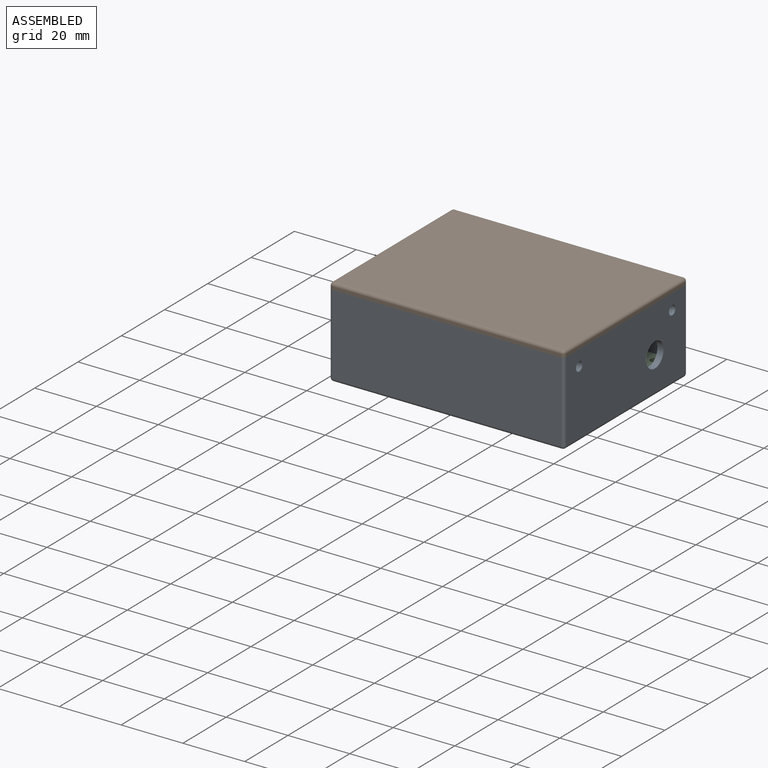
[diagram: assembled view]
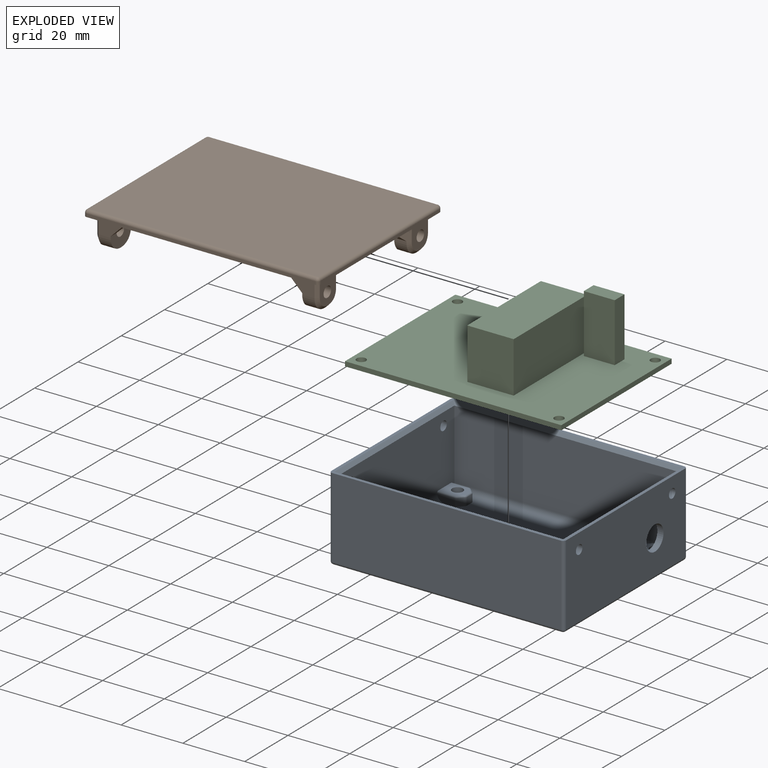
[diagram: exploded view]
GUIDED TOUR — MATED ASSEMBLY (Onshape document a544334e1fa4344969b32d0a, AutoMate assembly a544334e1fa4344969b32d0a_c6847210c81f3b9d24037eff_222b534353908682c56ab3ab_default)

This assembly has 3 components, labeled P0..P2 below (a component is one placed occurrence of a part; the same part can appear more than once), held together by 4 mates. A mate is a constraint between two components; its type names the relative motion it leaves free:
  REVOLUTE — leaves rotation about the listed axis free (a hinge).
Axis/direction vectors are unit vectors and 'through' points are millimeter coordinates, both in the assembly's world frame.

MATES
  1. REVOLUTE "Revolute 1": P0 <-> P2, axis (0.000, 0.000, 1.000) through (-4.71, -2.24, -3.11) mm
  2. REVOLUTE "Revolute 3": P1 <-> P0, axis (-1.000, 0.000, 0.000) through (-8.71, 41.51, 14.89) mm
  3. REVOLUTE "Revolute 2": P0 <-> P2, axis (0.000, 0.000, 1.000) through (59.29, 42.26, -3.11) mm
  4. REVOLUTE "Revolute 4": P0 <-> P1, axis (-1.000, 0.000, 0.000) through (63.29, -1.49, 14.89) mm

ASSEMBLY ORDER
  1. P2 — the base component [order verified]
  2. P0 [order verified]
  3. P1 [order verified]
Order-tag legend:
  [order verified] — this step's position reverses a verified removal order: the component was checked to insert without passing through the ones already placed.

Of the 3 components, 1 carries the full construction recipe — the FeatureScript program that regenerates the part's solid from scratch; the rest are supplied as boundary geometry only.
Each toured component is shown spotlighted twice — in the assembled view, then in the exploded view, where a leader line traces a displaced component back to its assembled socket (saturated green if recipe-attached, orange if geometry-only; every other component desaturated gray) — followed by its recipe or geometry summary and the mates that hold it.
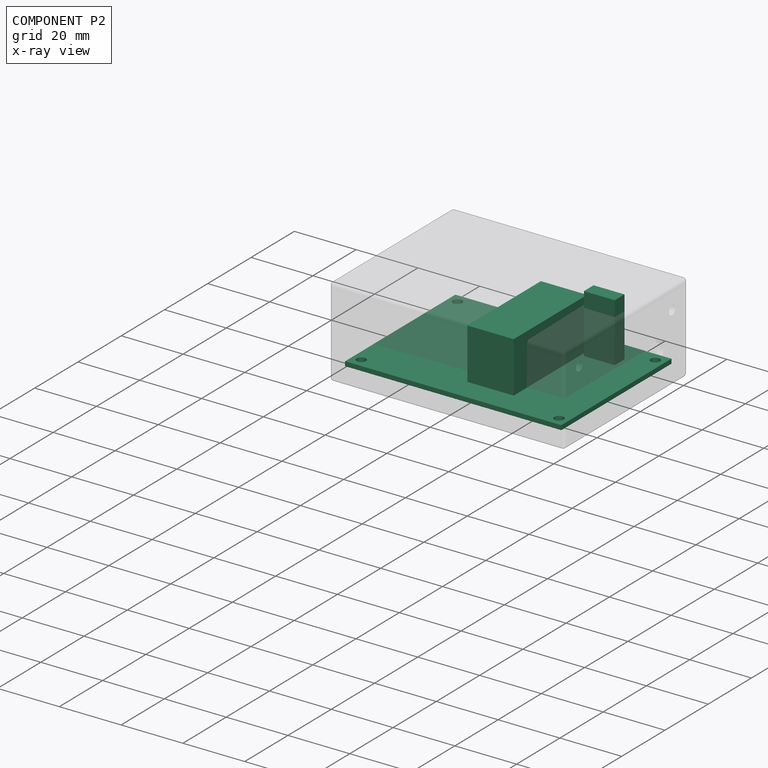
[diagram: component P2 — x-ray view]
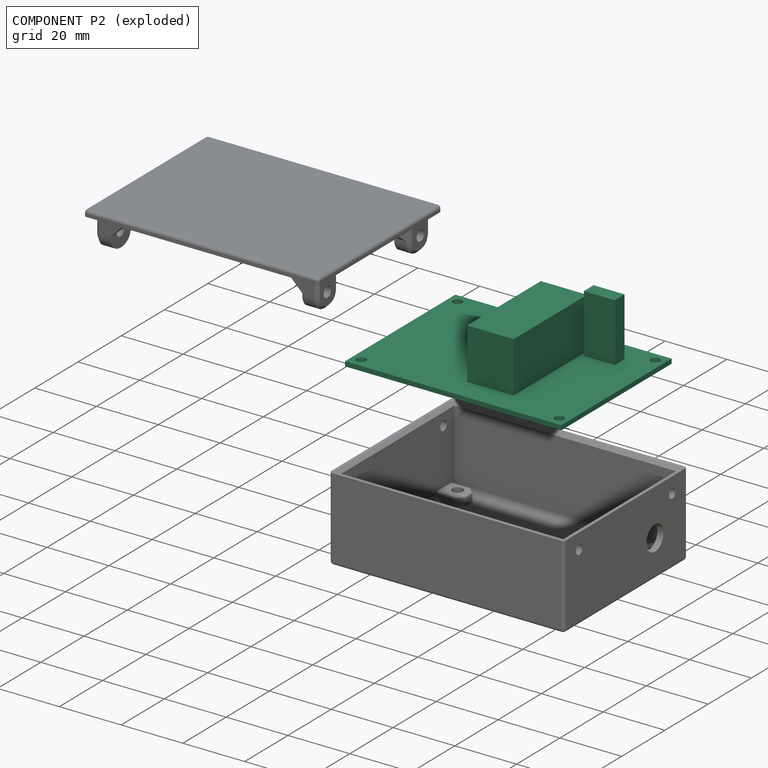
[diagram: component P2 — exploded]
COMPONENT P2 — recipe-attached (CADFS 00222716, mesh-verified: the recipe's output STEP matches this component's geometry to below the mesh-comparison resolution (tessellation chordal tolerance ~0.134 mm)).
Held by: REVOLUTE mate "Revolute 1" to P0; REVOLUTE mate "Revolute 2" to P0.
Construction recipe (FeatureScript — the CAD program that rebuilds this solid; sketch coordinates are in the units given by the * unit suffixes, e.g. mm):

FeatureScript 1511;
import(path : "onshape/std/geometry.fs", version : "1511.0");
import(path : "onshape/std/common.fs", version : "1511.0");
const mm = millimeter;
const VERTEX = EntityType.VERTEX;
const EDGE = EntityType.EDGE;
const FACE = EntityType.FACE;
const BODY = EntityType.BODY;
function v(x, y){return vector(x, y);}
function OD(order){return orderDisambiguation(order);}
function OSD(set){return originalSetDisambiguation(set);}
function TD(topology){return topologyDisambiguation(topology);}
function TDD(query){return trueDependencyDisambiguation(query);}
function sQuery(a, b, c) {return sketchEntityQuery(a, b, c);}

annotation { "Feature Type Name" : "Feature", "Feature Type Description" : "" }
export const myFeature = defineFeature(function(context is Context, id is Id, definition is map)
    precondition{}
    {
        {
            var Q0;
            Q0=qCreatedBy(makeId("Top.planeOp"),FACE);
            var sketch = newSketch(context, id + "F0", { "sketchPlane" : qUnion([Q0])});
            skLineSegment(sketch, "E0.bottom", {"start": v(0, 0) * mm, "end": v(70, 0) * mm});
            skLineSegment(sketch, "E0.top", {"start": v(0, 51) * mm, "end": v(70, 51) * mm});
            skLineSegment(sketch, "E0.left", {"start": v(0, 0) * mm, "end": v(0, 51) * mm});
            skLineSegment(sketch, "E0.right", {"start": v(70, 0) * mm, "end": v(70, 51) * mm});
            skSolve(sketch);
        }
        {
            var Q0;
            Q0 = qSketchRegion(id + "F0", true);
            extrude(context, id + "F1", {"entities" : qUnion([Q0]), "depth" : 1.5 * mm});
        }
        {
            var Q0;
            Q0=makeQuery(id+"F1.opExtrude","CAP_FACE",FACE,{"disambiguationData":[OSD([sQuery(id+"F0.wireOp",EDGE,"E0.bottom"),sQuery(id+"F0.wireOp",EDGE,"E0.top"),sQuery(id+"F0.wireOp",EDGE,"E0.left"),sQuery(id+"F0.wireOp",EDGE,"E0.right")])],"isStart":false});
            var sketch = newSketch(context, id + "F2", { "sketchPlane" : qUnion([Q0])});
            skLineSegment(sketch, "E1.0.0", {"start": v(70, 51) * mm, "end": v(0, 51) * mm, "construction": true});
            skLineSegment(sketch, "E1.0.1", {"start": v(0, 51) * mm, "end": v(0, 0) * mm, "construction": true});
            skLineSegment(sketch, "E1.0.2", {"start": v(0, 0) * mm, "end": v(70, 0) * mm, "construction": true});
            skLineSegment(sketch, "E1.0.3", {"start": v(70, 0) * mm, "end": v(70, 51) * mm, "construction": true});
            skCircle(sketch, "E2", {"center": v(67, 47.75) * mm, "radius": 1.5 * mm});
            skCircle(sketch, "E3", {"center": v(67, 3.25) * mm, "radius": 1.5 * mm});
            skLineSegment(sketch, "E4.bottom", {"start": v(3, 3.25) * mm, "end": v(67, 3.25) * mm, "construction": true});
            skLineSegment(sketch, "E4.top", {"start": v(3, 47.75) * mm, "end": v(67, 47.75) * mm, "construction": true});
            skLineSegment(sketch, "E4.left", {"start": v(3, 3.25) * mm, "end": v(3, 47.75) * mm, "construction": true});
            skLineSegment(sketch, "E4.right", {"start": v(67, 3.25) * mm, "end": v(67, 47.75) * mm, "construction": true});
            skLineSegment(sketch, "E5", {"start": v(0, 25.5) * mm, "end": v(70, 25.5) * mm, "construction": true});
            skPoint(sketch, "E6", {"position": v(3, 25.5) * mm});
            skLineSegment(sketch, "E7", {"start": v(35, 51) * mm, "end": v(35, 0) * mm, "construction": true});
            skPoint(sketch, "E8", {"position": v(35, 47.75) * mm});
            skCircle(sketch, "E9", {"center": v(3, 47.75) * mm, "radius": 1.5 * mm});
            skCircle(sketch, "E10", {"center": v(3, 3.25) * mm, "radius": 1.5 * mm});
            skSolve(sketch);
        }
        {
            var Q0;
            Q0 = qSketchRegion(id + "F2", true);
            extrude(context, id + "F3", {"entities" : qUnion([Q0]), "operationType" : NewBodyOperationType.REMOVE, "endBound" : BoundingType.THROUGH_ALL, "oppositeDirection" : true, "depth" : 25 * mm});
        }
        {
            var Q0;
            Q0=makeQuery(id+"F1.opExtrude","CAP_FACE",FACE,{"disambiguationData":[OSD([sQuery(id+"F0.wireOp",EDGE,"E0.bottom"),sQuery(id+"F0.wireOp",EDGE,"E0.top"),sQuery(id+"F0.wireOp",EDGE,"E0.left"),sQuery(id+"F0.wireOp",EDGE,"E0.right")])],"isStart":false});
            var sketch = newSketch(context, id + "F4", { "sketchPlane" : qUnion([Q0])});
            skLineSegment(sketch, "E11.bottom", {"start": v(34, 42) * mm, "end": v(49, 42) * mm});
            skLineSegment(sketch, "E11.top", {"start": v(34, 8) * mm, "end": v(49, 8) * mm});
            skLineSegment(sketch, "E11.left", {"start": v(34, 42) * mm, "end": v(34, 8) * mm});
            skLineSegment(sketch, "E11.right", {"start": v(49, 42) * mm, "end": v(49, 8) * mm});
            skSolve(sketch);
        }
        {
            var Q0;
            Q0 = qSketchRegion(id + "F4", true);
            extrude(context, id + "F5", {"entities" : qUnion([Q0]), "operationType" : NewBodyOperationType.ADD, "depth" : 16.5 * mm});
        }
        {
            var Q0;
            Q0=makeQuery(id+"F1.opExtrude","CAP_FACE",FACE,{"disambiguationData":[OSD([sQuery(id+"F0.wireOp",EDGE,"E0.bottom"),sQuery(id+"F0.wireOp",EDGE,"E0.top"),sQuery(id+"F0.wireOp",EDGE,"E0.left"),sQuery(id+"F0.wireOp",EDGE,"E0.right")])],"isStart":false});
            var sketch = newSketch(context, id + "F6", { "sketchPlane" : qUnion([Q0])});
            skLineSegment(sketch, "E12.bottom", {"start": v(50, 43.5) * mm, "end": v(60, 43.5) * mm});
            skLineSegment(sketch, "E12.top", {"start": v(50, 39) * mm, "end": v(60, 39) * mm});
            skLineSegment(sketch, "E12.left", {"start": v(50, 43.5) * mm, "end": v(50, 39) * mm});
            skLineSegment(sketch, "E12.right", {"start": v(60, 43.5) * mm, "end": v(60, 39) * mm});
            skSolve(sketch);
        }
        {
            var Q0;
            Q0 = qSketchRegion(id + "F6", true);
            extrude(context, id + "F7", {"entities" : qUnion([Q0]), "operationType" : NewBodyOperationType.ADD, "depth" : 19 * mm});
        }
    });
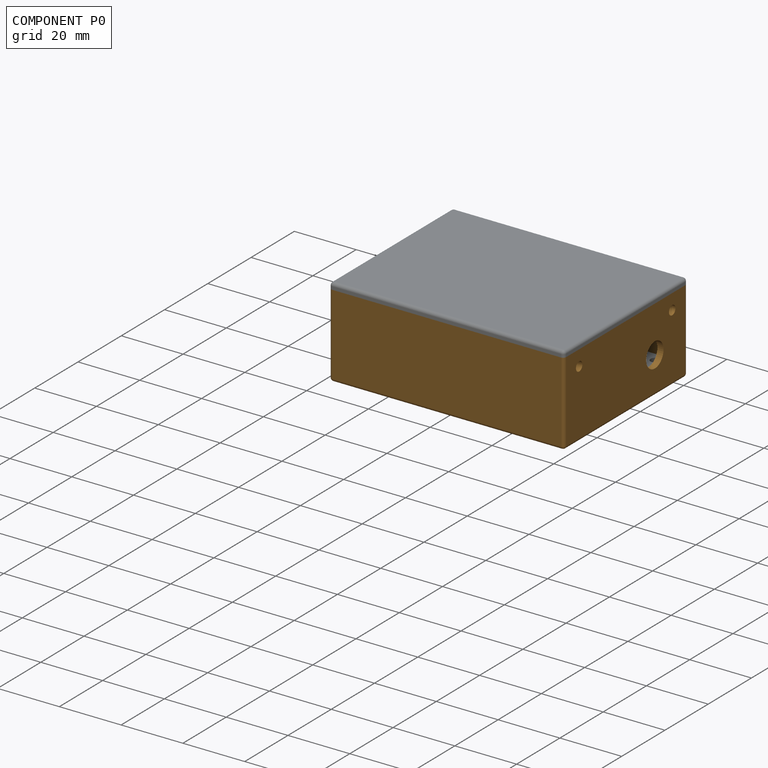
[diagram: component P0 — assembled]
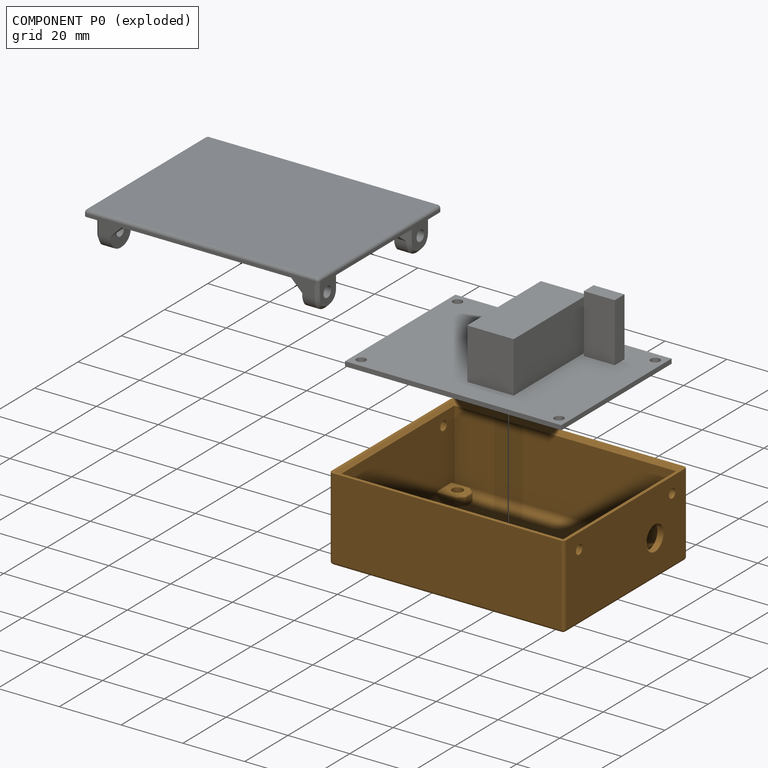
[diagram: component P0 — exploded]
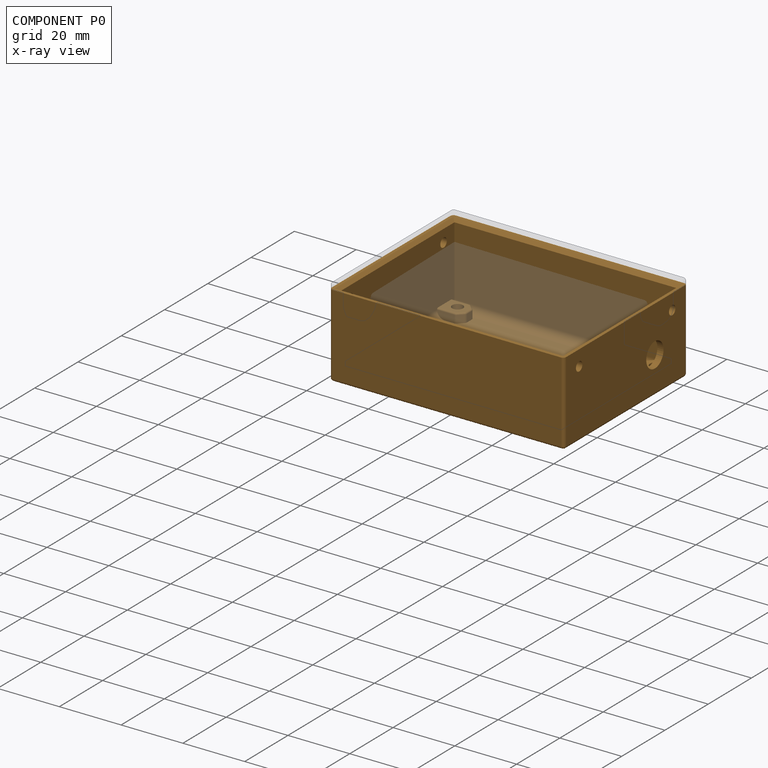
[diagram: component P0 — x-ray view]
COMPONENT P0 — geometry summary (no construction recipe available for this part):
  bounding box: 76.0 x 57.0 x 27.0 mm
  B-rep topology: 1 solid, 121 faces, 606 edges
  volume: 18029 mm^3 (15% of its bounding box)
  symmetry: 2-fold rotationally symmetric about the z axis
Held by: REVOLUTE mate "Revolute 1" to P2; REVOLUTE mate "Revolute 3" to P1; REVOLUTE mate "Revolute 2" to P2; REVOLUTE mate "Revolute 4" to P1.
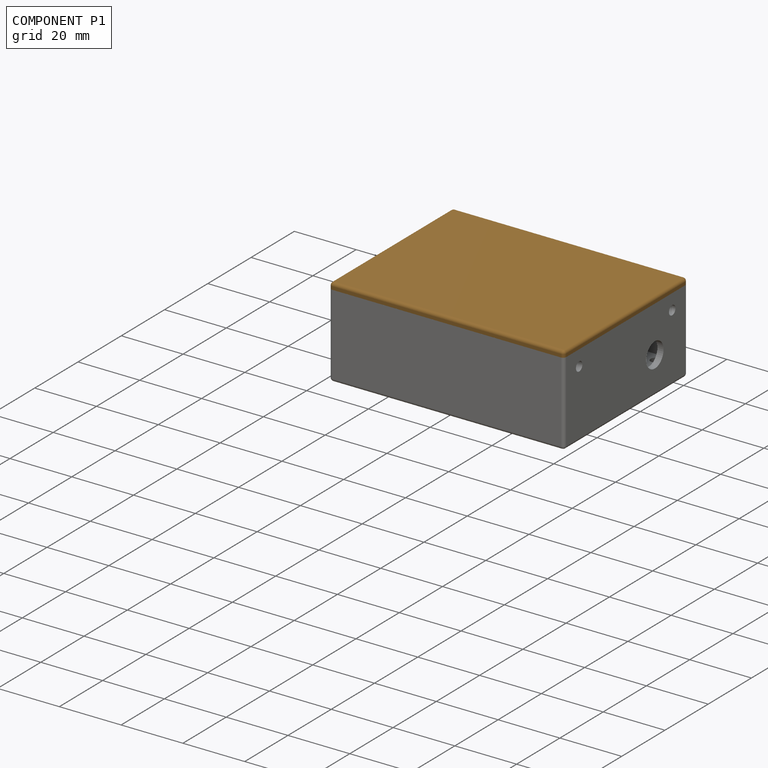
[diagram: component P1 — assembled]
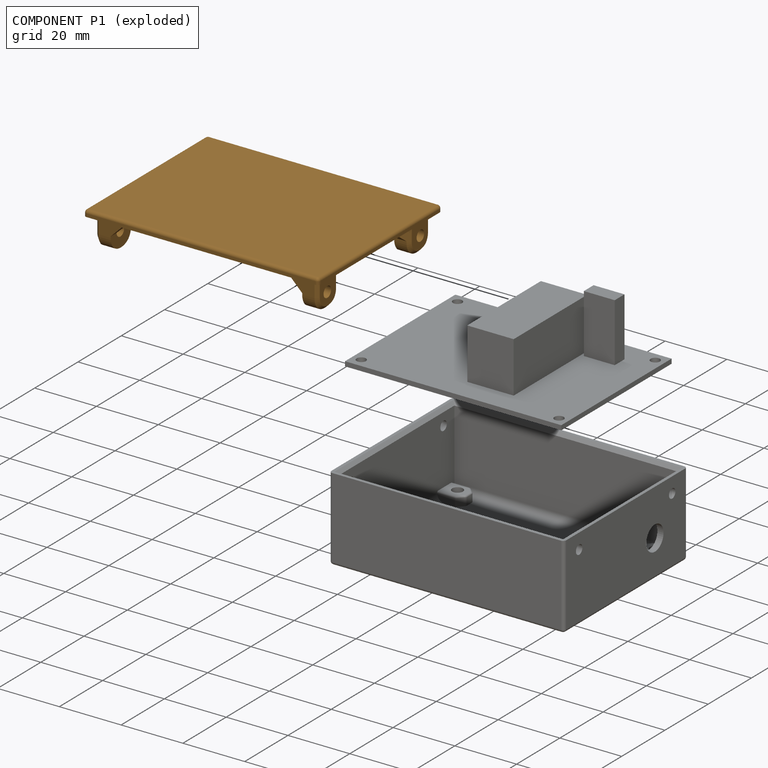
[diagram: component P1 — exploded]
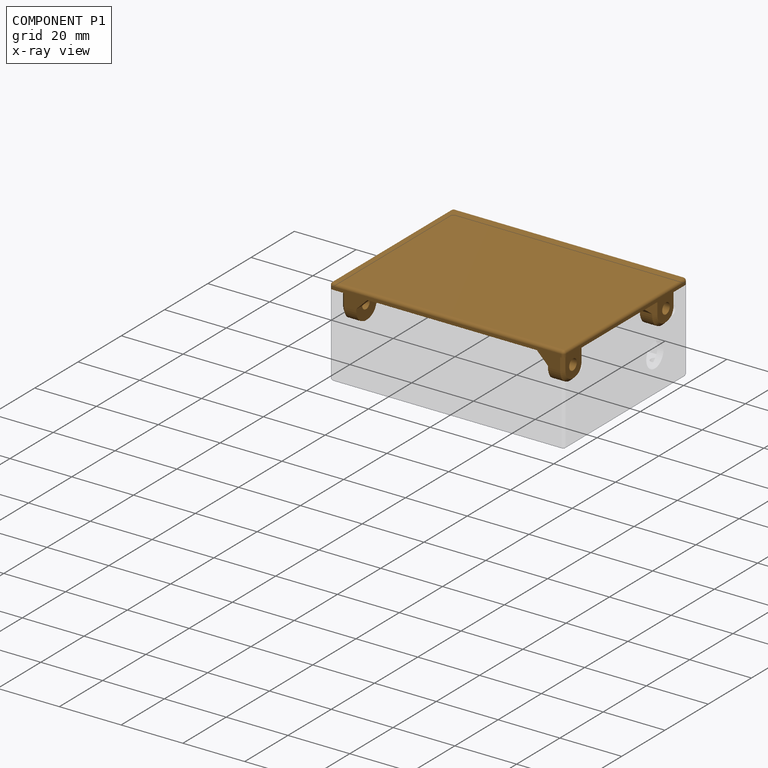
[diagram: component P1 — x-ray view]
COMPONENT P1 — geometry summary (no construction recipe available for this part):
  bounding box: 76.0 x 57.0 x 12.0 mm
  B-rep topology: 1 solid, 102 faces, 508 edges
  volume: 10880 mm^3 (21% of its bounding box)
  symmetry: 2-fold rotationally symmetric about the z axis; mirror-symmetric across its x mid-plane, y mid-plane
Held by: REVOLUTE mate "Revolute 3" to P0; REVOLUTE mate "Revolute 4" to P0.
PROVENANCE & LICENSES
Assembly (occurrences, transforms, mates, per-part STEP geometry): AutoMate dataset, Zenodo record 7776208, CC0.
Construction recipes: CADFS (HuggingFace VladPyatov/CADFS, CC-BY-4.0, layered over the ABC dataset), FeatureScript reconstruction programs keyed by ABC model id.
Join: ABC meta listings map ABC model id -> Onshape documentId; within a shared document, parts are matched by geometric signature (bounding-box dims + volume at 0.1% relative tolerance, exact B-rep face/solid counts).
Verification: 1 of this assembly's 3 components carries a recipe attachment, and every attachment is mesh-verified: the CADFS STEP and the AutoMate member STEP were compared as meshes in their shared local frame (symmetric sampled-point-to-mesh distance); worst across the 1 attachment: below the mesh-comparison resolution (tessellation chordal tolerance ~0.134 mm) on a 89 mm part.
Renders: orthographic iso camera (az 35 / el 25); the floor grid conveys scale (grid pitch printed in each image; no ruler). In the exploded view each component is displaced by its stored offset vector: the offsets alone carry the explosion direction (mate normal/axis signs are not orientation cues and do not encode it), and separation distances are assigned per mate-chain, not proportionally to assembly-order depth.
